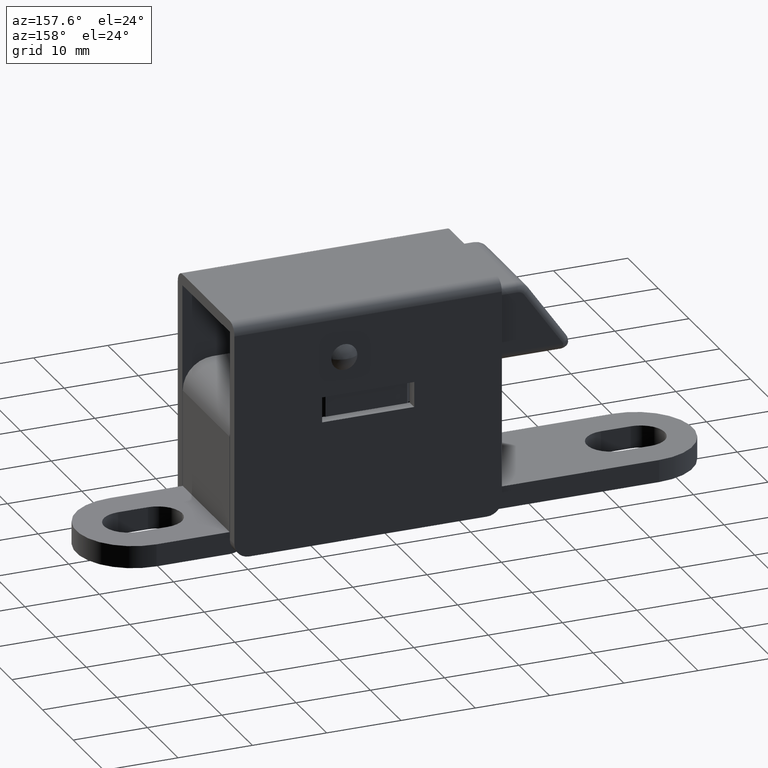
[diagram: clean part render]
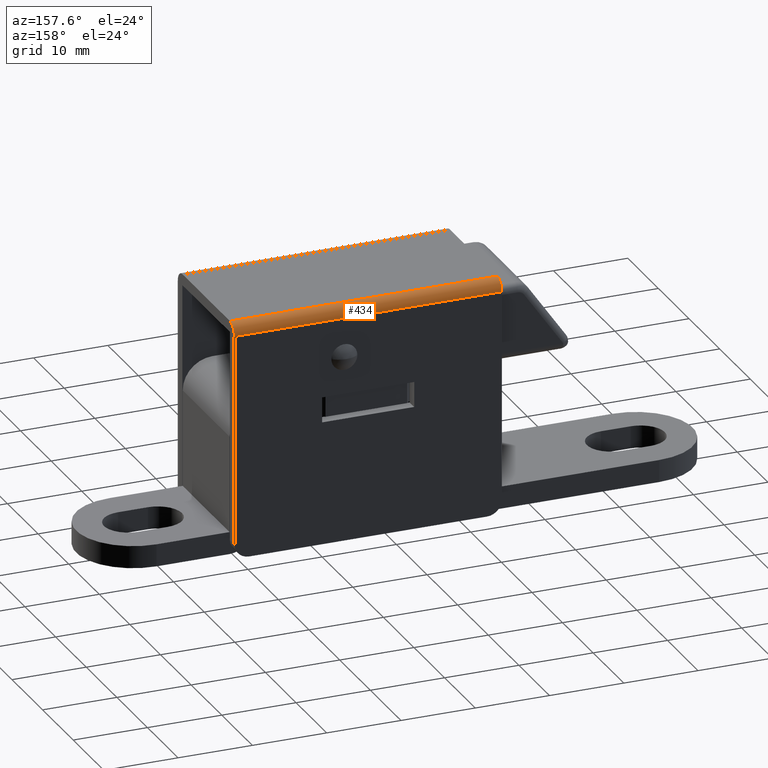
[diagram: same view with one face highlighted and labeled with its STEP entity id]
A machine part, auxiliary view. The second image highlights one B-rep face of the part: STEP entity #434.
In plain terms, the highlighted cylindrical surface (edge-blend (fillet) strip) has radius 1.5 mm, axis along (1, 0, 0).
Its self-contained STEP definition (entity closure, byte-faithful):
#24 = CARTESIAN_POINT ( 'NONE',  ( -44.49999999929998800, 7.750000000000000000, 28.80000000000000800 ) ) ;
#63 = ORIENTED_EDGE ( 'NONE', *, *, #2072, .T. ) ;
#167 = VERTEX_POINT ( 'NONE', #5183 ) ;
#336 = CARTESIAN_POINT ( 'NONE',  ( 955.5000000009999900, 7.750000000000000000, 28.80000000000000400 ) ) ;
#434 = ADVANCED_FACE ( 'NONE', ( #3435 ), #3824, .T. ) ;
#578 = DIRECTION ( 'NONE',  ( 0.0000000000000000000, 1.156482317317870300E-015, -1.000000000000000000 ) ) ;
#728 = VERTEX_POINT ( 'NONE', #2813 ) ;
#801 = LINE ( 'NONE', #336, #1843 ) ;
#822 = EDGE_CURVE ( 'NONE', #167, #5244, #3190, .T. ) ;
#1168 = CARTESIAN_POINT ( 'NONE',  ( -44.49999999929998800, 7.750000000000000000, 27.30000000000000100 ) ) ;
#1374 = DIRECTION ( 'NONE',  ( -1.000000000000000000, 0.0000000000000000000, 0.0000000000000000000 ) ) ;
#1457 = DIRECTION ( 'NONE',  ( -1.000000000000000000, 0.0000000000000000000, 0.0000000000000000000 ) ) ;
#1549 = EDGE_LOOP ( 'NONE', ( #63, #5358, #3500, #5502 ) ) ;
#1613 = DIRECTION ( 'NONE',  ( 0.0000000000000000000, 1.156482317317870300E-015, -1.000000000000000000 ) ) ;
#1843 = VECTOR ( 'NONE', #3011, 1000.000000000000000 ) ;
#1913 = AXIS2_PLACEMENT_3D ( 'NONE', #2484, #3971, #5264 ) ;
#2072 = EDGE_CURVE ( 'NONE', #728, #167, #5508, .T. ) ;
#2110 = AXIS2_PLACEMENT_3D ( 'NONE', #4133, #1457, #578 ) ;
#2484 = CARTESIAN_POINT ( 'NONE',  ( 955.5000000009999900, 7.750000000000000000, 27.30000000000000100 ) ) ;
#2712 = CARTESIAN_POINT ( 'NONE',  ( -44.49999999929998800, 9.250000000000000000, 27.30000000000000400 ) ) ;
#2813 = CARTESIAN_POINT ( 'NONE',  ( -8.499999999689983100, 7.750000000000000000, 28.80000000000000800 ) ) ;
#3011 = DIRECTION ( 'NONE',  ( 1.000000000000000000, -0.0000000000000000000, -0.0000000000000000000 ) ) ;
#3190 = LINE ( 'NONE', #4480, #5520 ) ;
#3435 = FACE_OUTER_BOUND ( 'NONE', #1549, .T. ) ;
#3500 = ORIENTED_EDGE ( 'NONE', *, *, #4387, .F. ) ;
#3503 = EDGE_CURVE ( 'NONE', #4276, #728, #801, .T. ) ;
#3824 = CYLINDRICAL_SURFACE ( 'NONE', #1913, 1.500000000000001300 ) ;
#3938 = CIRCLE ( 'NONE', #3941, 1.500000000000001300 ) ;
#3941 = AXIS2_PLACEMENT_3D ( 'NONE', #1168, #4278, #1613 ) ;
#3971 = DIRECTION ( 'NONE',  ( 1.000000000000000000, -0.0000000000000000000, -0.0000000000000000000 ) ) ;
#4133 = CARTESIAN_POINT ( 'NONE',  ( -8.499999999689977800, 7.750000000000000000, 27.30000000000000100 ) ) ;
#4276 = VERTEX_POINT ( 'NONE', #24 ) ;
#4278 = DIRECTION ( 'NONE',  ( -1.000000000000000000, 0.0000000000000000000, 0.0000000000000000000 ) ) ;
#4387 = EDGE_CURVE ( 'NONE', #4276, #5244, #3938, .T. ) ;
#4480 = CARTESIAN_POINT ( 'NONE',  ( 955.5000000009999900, 9.250000000000000000, 27.30000000000000100 ) ) ;
#5183 = CARTESIAN_POINT ( 'NONE',  ( -8.499999999689983100, 9.250000000000000000, 27.30000000000000400 ) ) ;
#5244 = VERTEX_POINT ( 'NONE', #2712 ) ;
#5264 = DIRECTION ( 'NONE',  ( 0.0000000000000000000, 0.0000000000000000000, -1.000000000000000000 ) ) ;
#5358 = ORIENTED_EDGE ( 'NONE', *, *, #822, .T. ) ;
#5502 = ORIENTED_EDGE ( 'NONE', *, *, #3503, .T. ) ;
#5508 = CIRCLE ( 'NONE', #2110, 1.500000000000001300 ) ;
#5520 = VECTOR ( 'NONE', #1374, 1000.000000000000000 ) ;